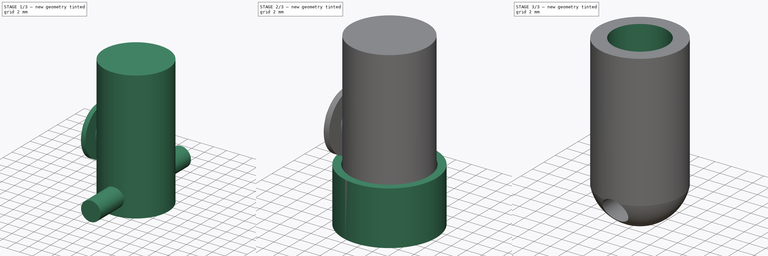
[diagram: build sequence overview — one tinted view per stage of 3, left to right]
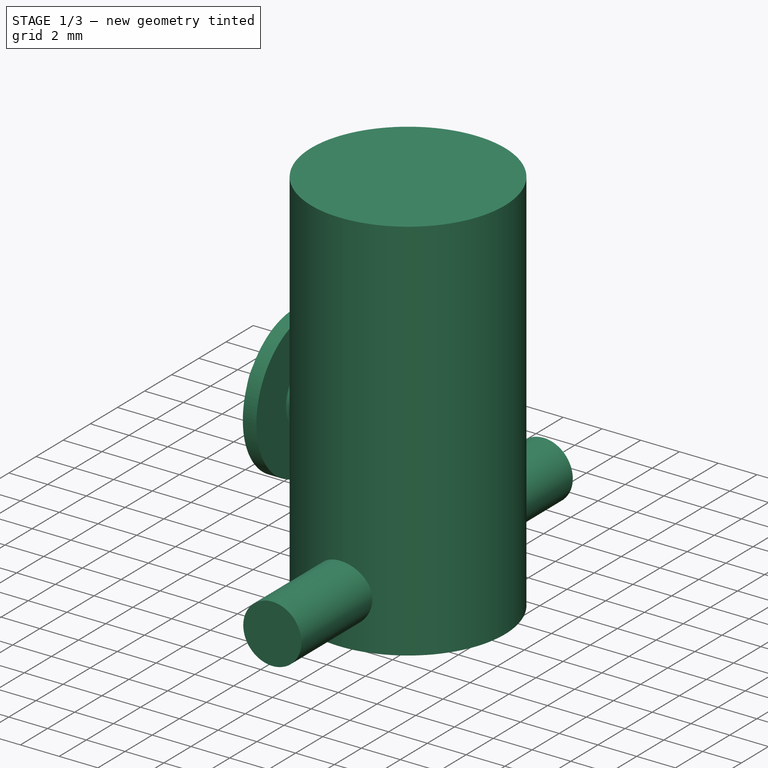
[diagram: stage 1 of 3 — iso view after this stage's code; geometry added in this stage tinted green]
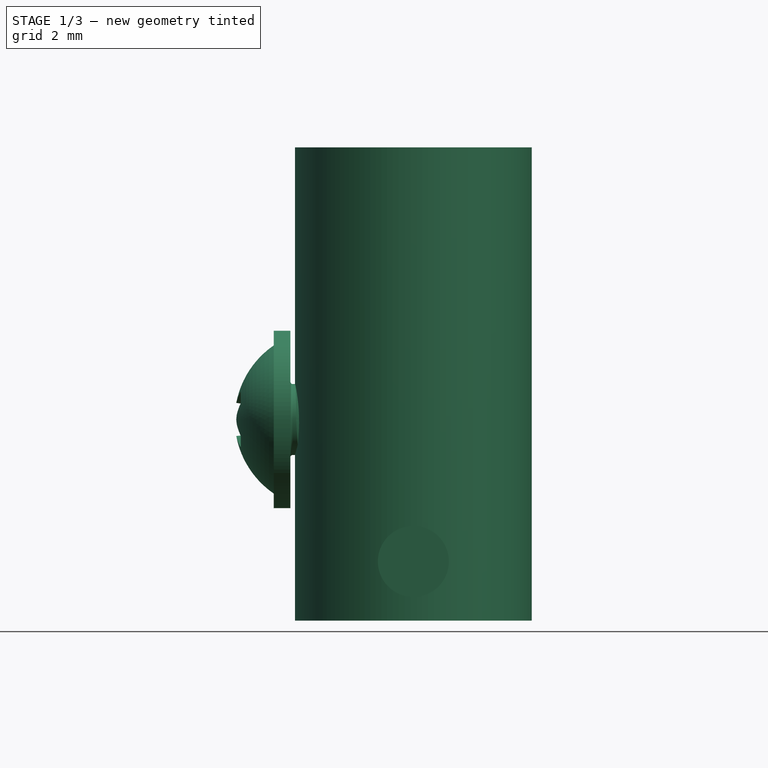
[diagram: stage 1 of 3 — front view after this stage's code; geometry added in this stage tinted green]
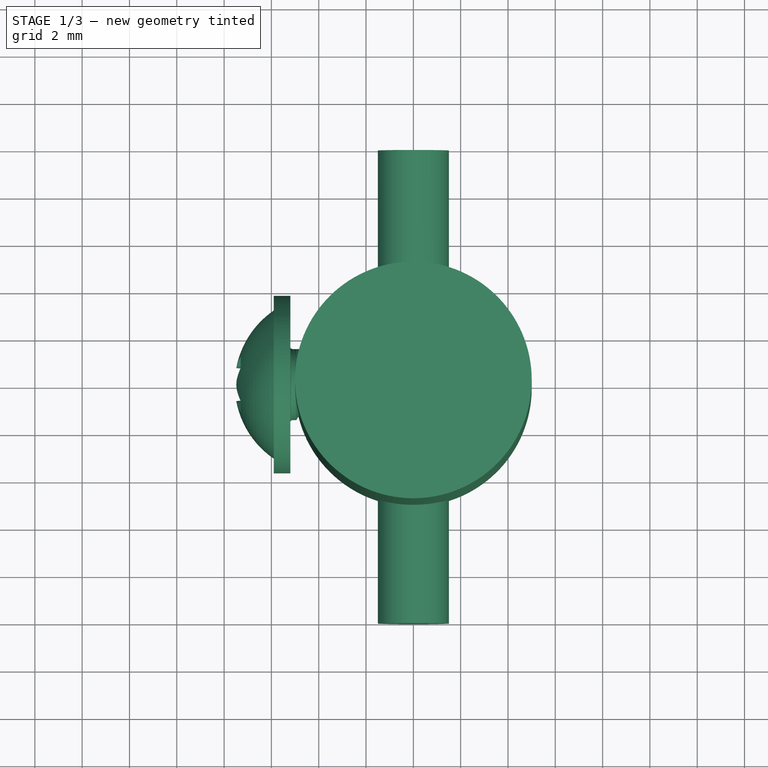
[diagram: stage 1 of 3 — top view after this stage's code; geometry added in this stage tinted green]
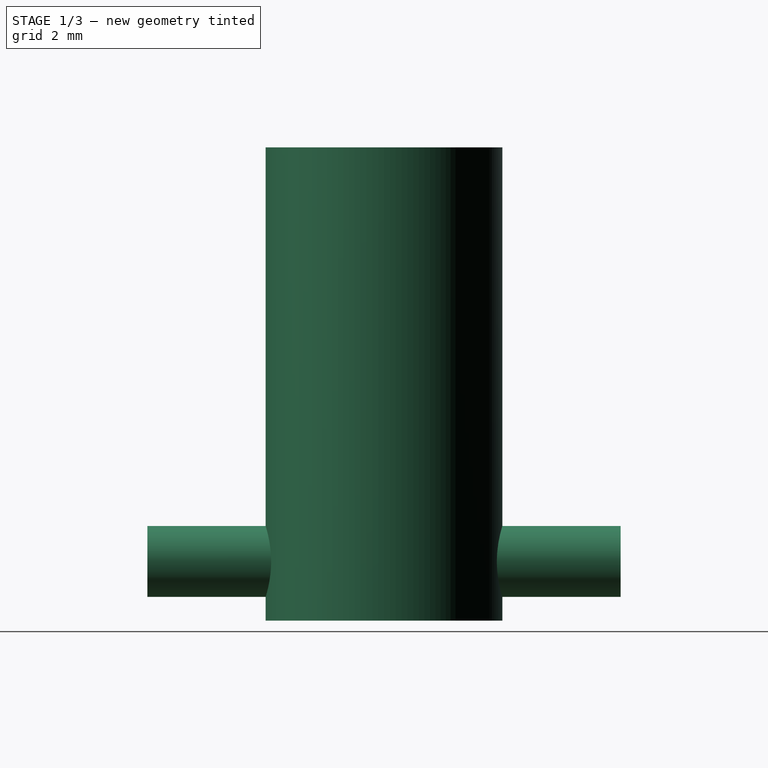
[diagram: stage 1 of 3 — right view after this stage's code; geometry added in this stage tinted green]
FCSTD DOCUMENT  (FreeCAD 0.16R6705 (Git))
Label: pippetto_filetto
License: All rights reserved
LicenseURL: http://it.wikipedia.org/wiki/<copyright redacted>
objects: Sketcher::SketchObject×4, Part::Cut×3, PartDesign::Pad×2, PartDesign::Revolution×1, PartDesign::Pocket×1, Part::FeaturePython×1
note: 16 computed .brp shape members not serialized (recipe doc carries the construction recipe); baked Part::Feature solids carry a one-line shape summary decoded from their .brp

FEATURE [Sketcher::SketchObject] Sketch
  sketch-geometry (1):
    g0: Circle CenterX=0 CenterY=0 CenterZ=0 NormalX=0 NormalY=0 NormalZ=1 Radius=5.00401
  constraints (1):
    c: Coincident(g0,g-1)
FEATURE [PartDesign::Pad] Pad
  Length = 20
  Length2 = 100
  Sketch = -> Sketch
  Type = 0
FEATURE [Sketcher::SketchObject] Sketch003
  Placement = pos=(0,0,0) rot=(1,0,0;1.5708rad)
  sketch-geometry (1):
    g0: Circle CenterX=0 CenterY=2.5 CenterZ=0 NormalX=0 NormalY=0 NormalZ=1 Radius=1.5
  constraints (3):
    c: Radius(g0) = 1.5
    c: DistanceY(g-1,g0) = 2.5
    c: PointOnObject(g0,g-2)
FEATURE [PartDesign::Pad] Pad001
  Length = 20
  Length2 = 100
  Midplane = true
  Placement = pos=(0,0,0) rot=(1,0,0;1.5708rad)
  Sketch = -> Sketch003
  Type = 0
FEATURE [Part::FeaturePython] Screw  label="M3x4-Screw"  # Fasteners workbench fastener (typed FeaturePython)
  Placement = pos=(-5.2,0,8.5) rot=(0.57735,0.57735,-0.57735;4.18879rad)
  diameter = 1
  invert = true
  length = 0
  matchOuter = false
  offset = 0
  thread = true
  type = 0
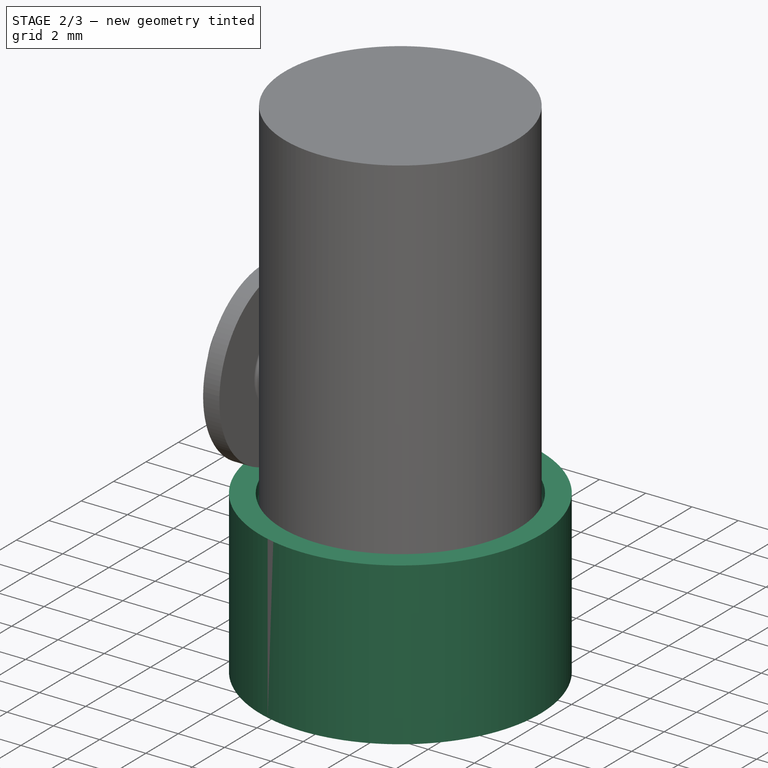
[diagram: stage 2 of 3 — iso view after this stage's code; geometry added in this stage tinted green]
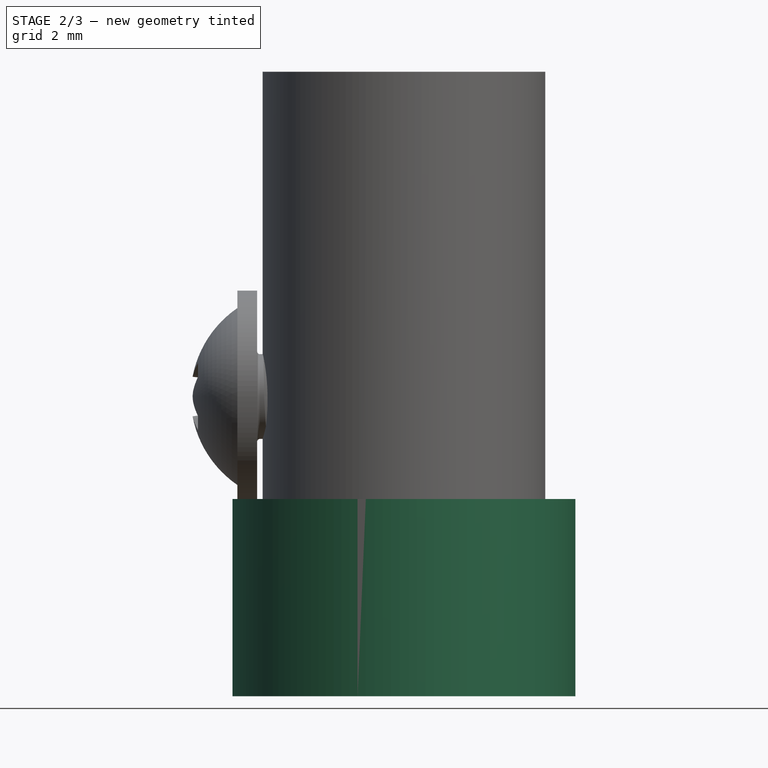
[diagram: stage 2 of 3 — front view after this stage's code; geometry added in this stage tinted green]
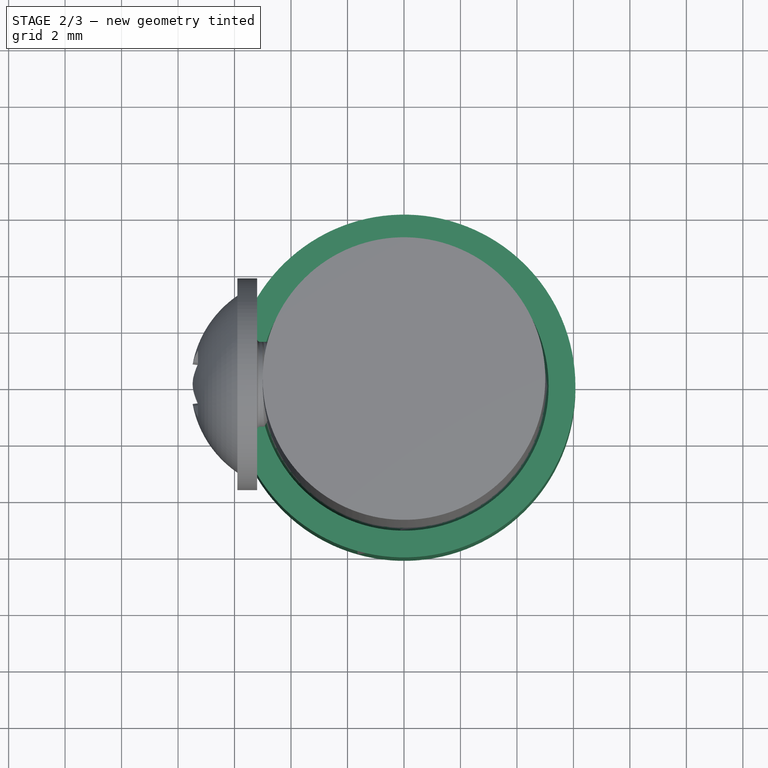
[diagram: stage 2 of 3 — top view after this stage's code; geometry added in this stage tinted green]
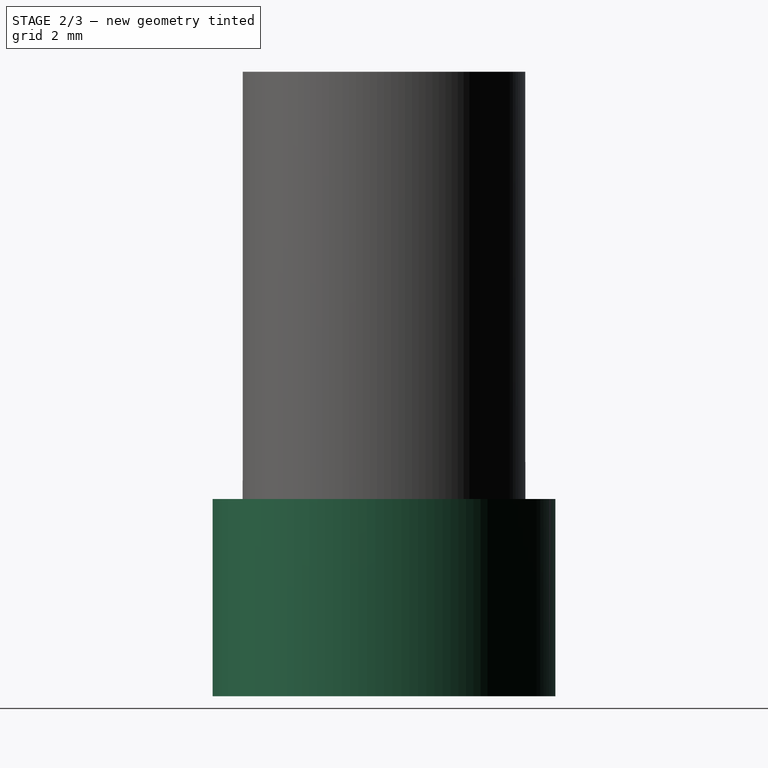
[diagram: stage 2 of 3 — right view after this stage's code; geometry added in this stage tinted green]
FEATURE [Sketcher::SketchObject] Sketch004
  Placement = pos=(0,0,0) rot=(1,0,0;1.5708rad)
  sketch-geometry (5):
    g0: ArcOfCircle CenterX=-0.074939 CenterY=4.79613 CenterZ=0 NormalX=0 NormalY=0 NormalZ=1 Radius=5.19634 StartAngle=4.72681 EndAngle=6.29777
    g1: LineSegment StartX=6.07002 StartY=4.87191 StartZ=0 EndX=6.07002 EndY=-2.11357 EndZ=0
    g2: LineSegment StartX=0 StartY=-2.11357 StartZ=0 EndX=6.07002 EndY=-2.11357 EndZ=0
    g3: LineSegment StartX=5.12085 StartY=4.87191 StartZ=0 EndX=6.07002 EndY=4.87191 EndZ=0
    g4: LineSegment StartX=0 StartY=-0.399672 StartZ=0 EndX=0 EndY=-2.11357 EndZ=0
  constraints (10):
    c: Coincident(g4,g0)
    c: Coincident(g4,g2)
    c: Coincident(g1,g2)
    c: Coincident(g3,g0)
    c: Coincident(g1,g3)
    c: Horizontal(g2)
    c: Horizontal(g3)
    c: Vertical(g1)
    c: Vertical(g4)
    c: PointOnObject(g0,g-2)
FEATURE [PartDesign::Revolution] Revolution
  Angle = 360
  Axis = (0,0,1)
  Base = (0,0,0)
  Placement = pos=(0,0,0) rot=(1,0,0;1.5708rad)
  ReferenceAxis = -> Sketch004 [V_Axis]
  Reversed = true
  Sketch = -> Sketch004
FEATURE [Part::Cut] Cut
  Base = -> Pad
  Tool = -> Pad001
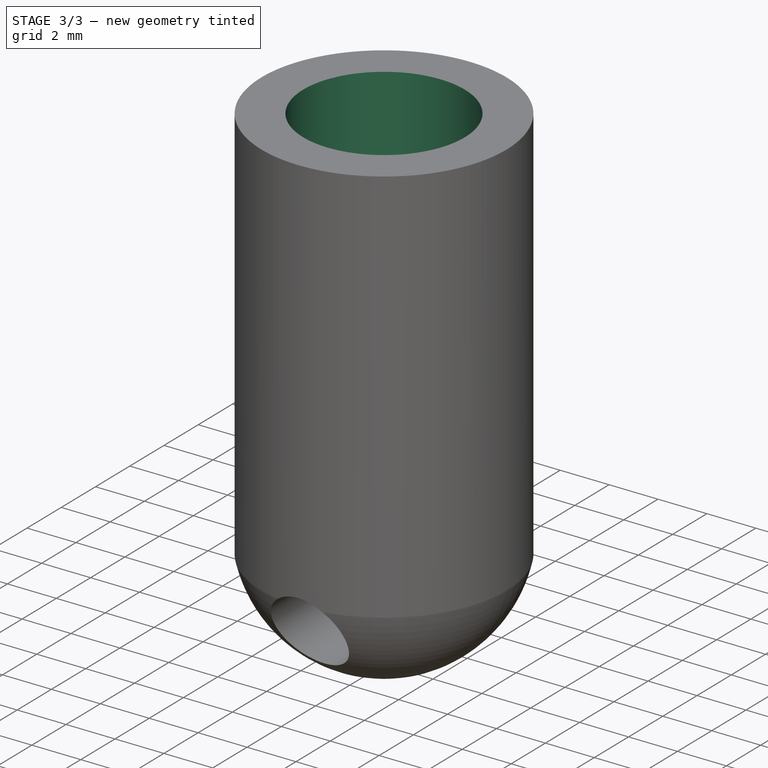
[diagram: stage 3 of 3 — iso view after this stage's code; geometry added in this stage tinted green]
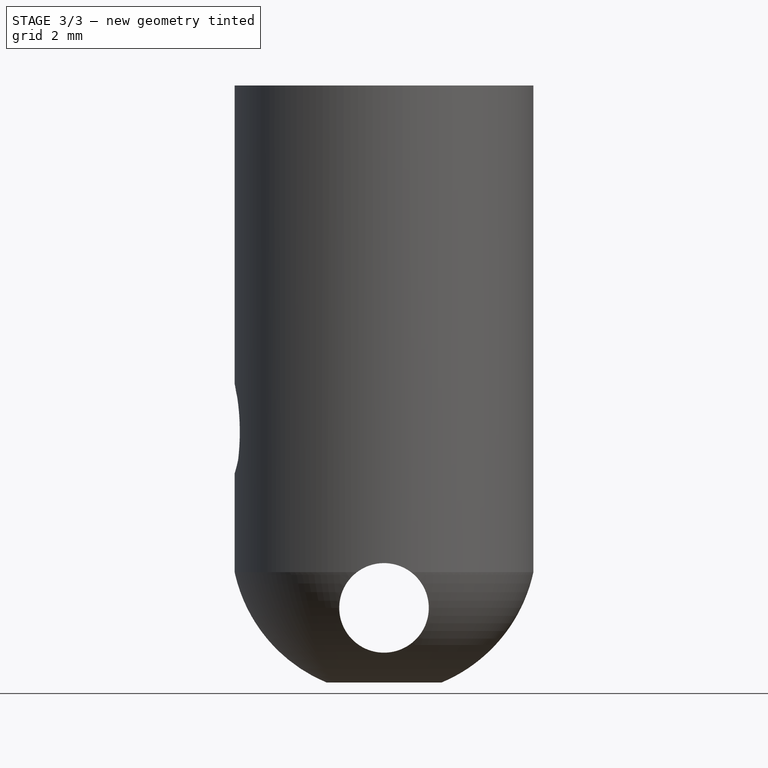
[diagram: stage 3 of 3 — front view after this stage's code; geometry added in this stage tinted green]
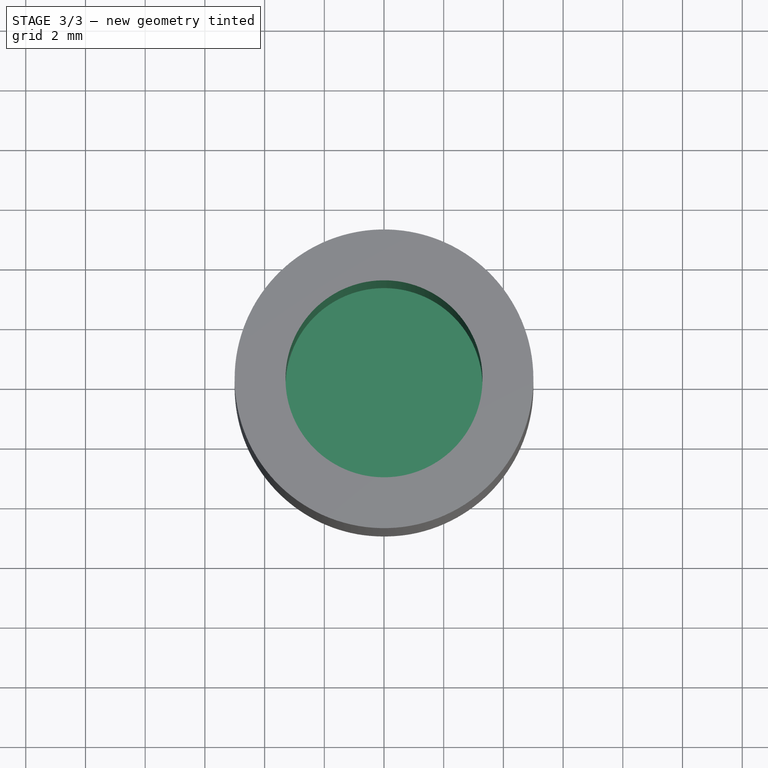
[diagram: stage 3 of 3 — top view after this stage's code; geometry added in this stage tinted green]
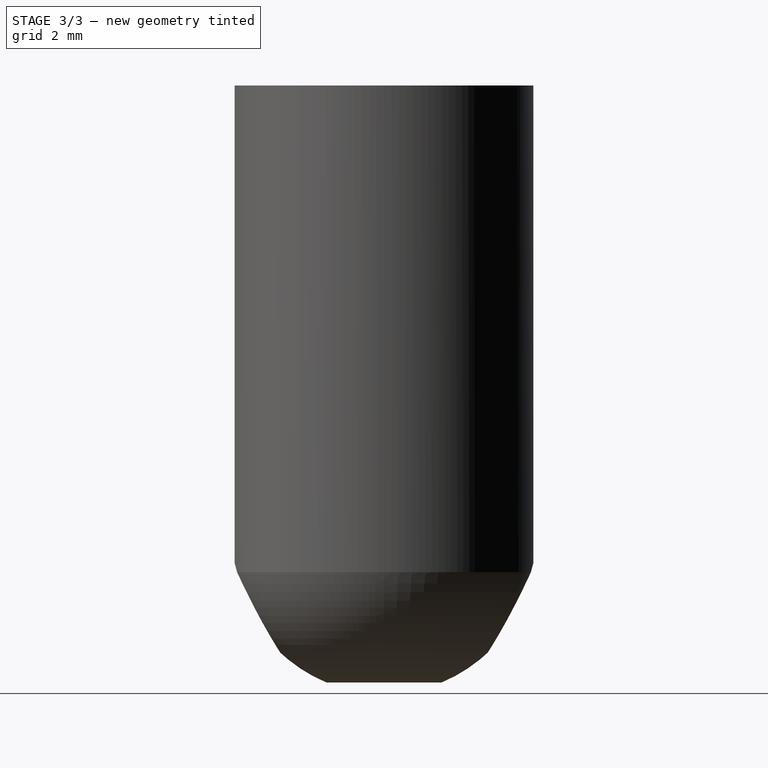
[diagram: stage 3 of 3 — right view after this stage's code; geometry added in this stage tinted green]
FEATURE [Part::Cut] Cut001
  Base = -> Cut
  Tool = -> Revolution
FEATURE [Sketcher::SketchObject] Sketch005
  Placement = pos=(0,0,20) rot=(0,0,1;0rad)
  Support = -> Cut001 [Face4]
  sketch-geometry (1):
    g0: Circle CenterX=0 CenterY=0 CenterZ=0 NormalX=0 NormalY=0 NormalZ=1 Radius=3.3
  constraints (1):
    c: Radius(g0) = 3.3
FEATURE [PartDesign::Pocket] Pocket
  Length = 15
  Sketch = -> Sketch005
  Type = 0
FEATURE [Part::Cut] Cut002
  Base = -> Pocket
  Tool = -> Screw
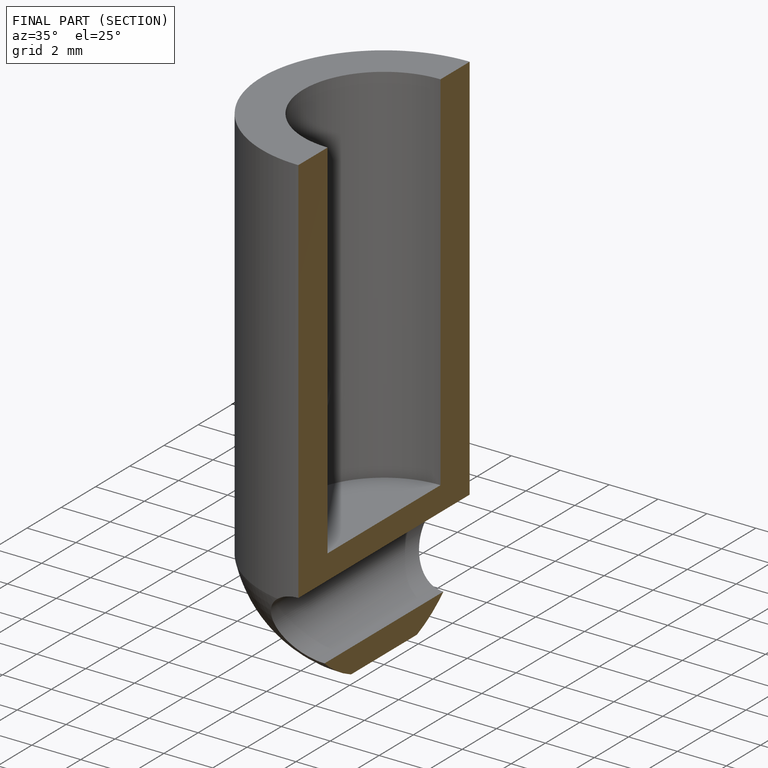
[diagram: finished part — half-section view (interior)]
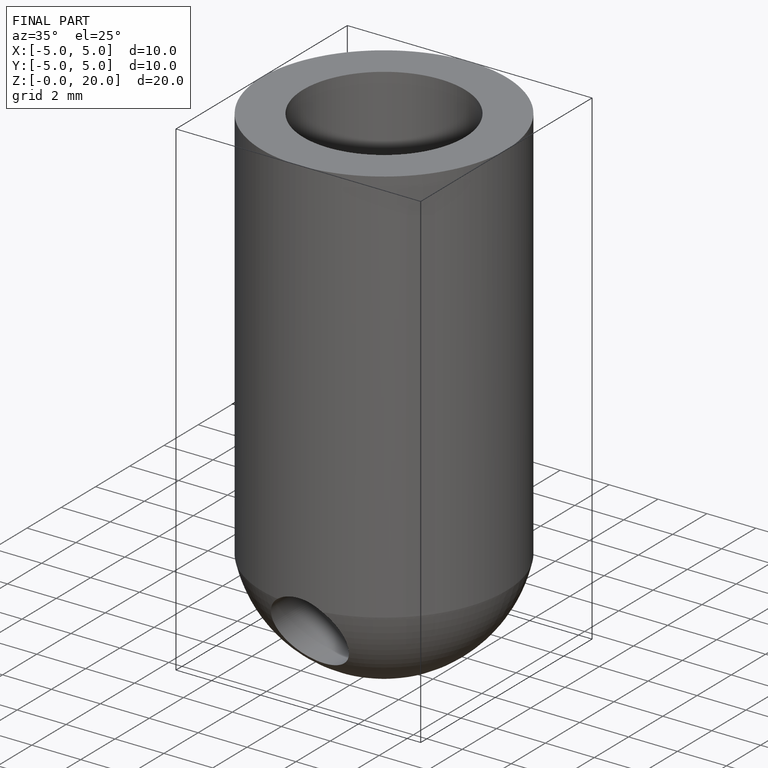
[diagram: finished part — iso view with bounding-box wireframe]
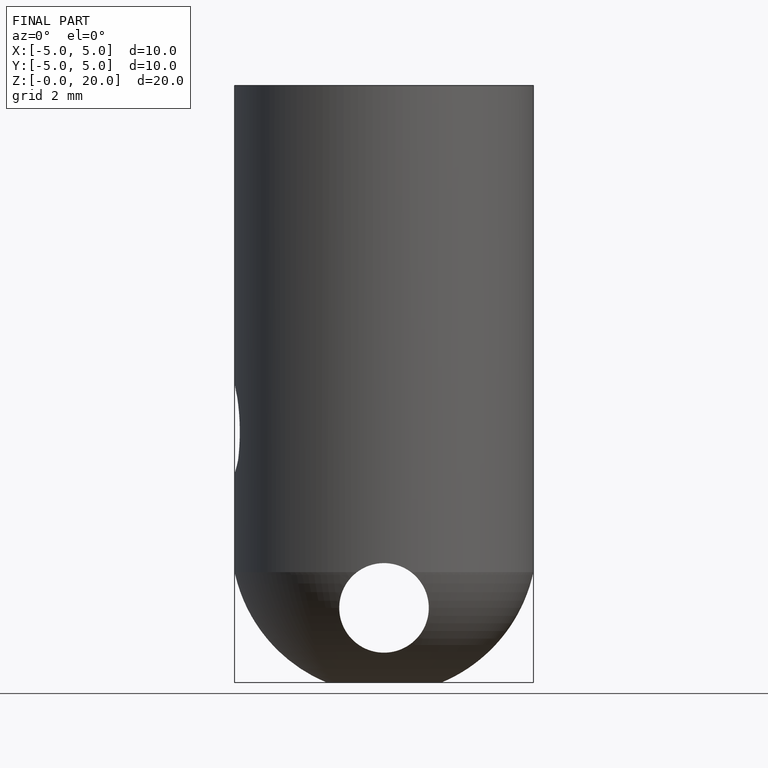
[diagram: finished part — front view with bounding-box wireframe]
